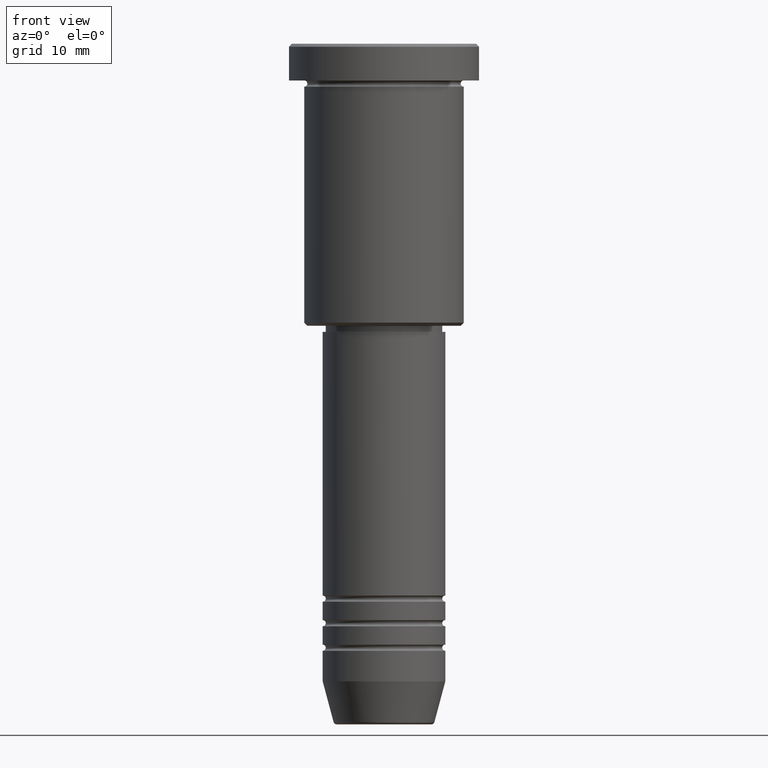
[diagram: clean part render]
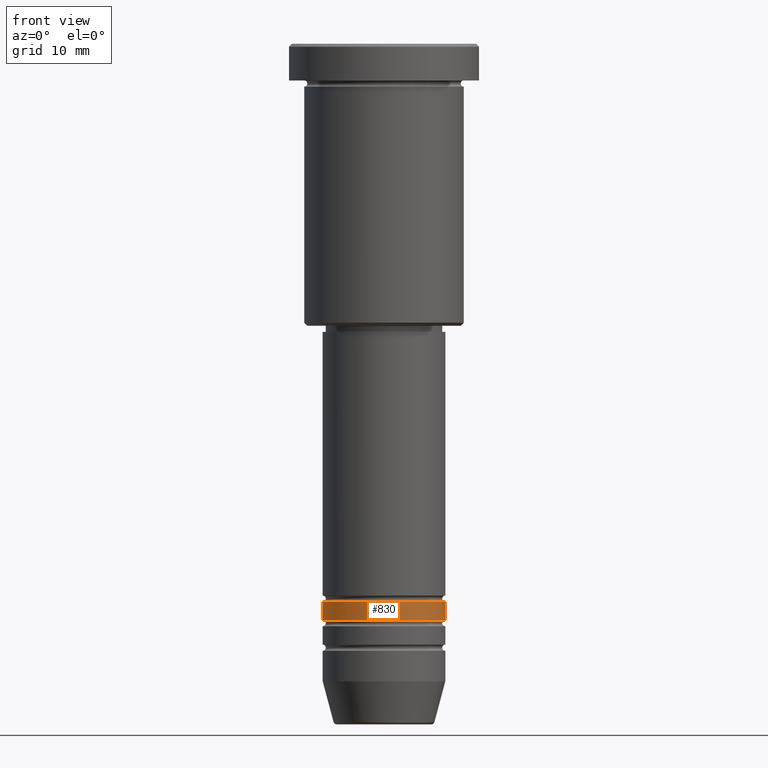
[diagram: same view with one face highlighted and labeled with its STEP entity id]
A machine part, front view. The second image highlights one B-rep face of the part: STEP entity #830.
In plain terms, the highlighted cylindrical surface (partial cylindrical patch) has radius 10 mm, axis along (-0, -0, 1).
Its self-contained STEP definition (entity closure, byte-faithful):
#16 = ORIENTED_EDGE ( 'NONE', *, *, #77, .T. ) ;
#53 = DIRECTION ( 'NONE',  ( -0.000000000000000000, -0.000000000000000000, 1.000000000000000000 ) ) ;
#76 = VERTEX_POINT ( 'NONE', #1079 ) ;
#77 = EDGE_CURVE ( 'NONE', #76, #377, #922, .T. ) ;
#93 = DIRECTION ( 'NONE',  ( 1.000000000000000000, 0.000000000000000000, 0.000000000000000000 ) ) ;
#110 = VECTOR ( 'NONE', #702, 1000.000000000000000 ) ;
#121 = ORIENTED_EDGE ( 'NONE', *, *, #200, .T. ) ;
#144 = VERTEX_POINT ( 'NONE', #664 ) ;
#200 = EDGE_CURVE ( 'NONE', #377, #787, #320, .T. ) ;
#201 = EDGE_LOOP ( 'NONE', ( #1101, #16, #121, #801 ) ) ;
#291 = AXIS2_PLACEMENT_3D ( 'NONE', #745, #834, #93 ) ;
#300 = CARTESIAN_POINT ( 'NONE',  ( 10.00000000000000178, 0.000000000000000000, 0.000000000000000000 ) ) ;
#320 = LINE ( 'NONE', #300, #642 ) ;
#335 = CARTESIAN_POINT ( 'NONE',  ( 10.00000000000000000, 0.000000000000000000, -90.99999999999990052 ) ) ;
#352 = DIRECTION ( 'NONE',  ( -0.000000000000000000, -0.000000000000000000, 1.000000000000000000 ) ) ;
#377 = VERTEX_POINT ( 'NONE', #1040 ) ;
#397 = CYLINDRICAL_SURFACE ( 'NONE', #291, 10.00000000000000178 ) ;
#467 = DIRECTION ( 'NONE',  ( 1.000000000000000000, 0.000000000000000000, 0.000000000000000000 ) ) ;
#499 = CARTESIAN_POINT ( 'NONE',  ( 0.000000000000000000, 0.000000000000000000, -90.99999999999990052 ) ) ;
#556 = CARTESIAN_POINT ( 'NONE',  ( 0.000000000000000000, 0.000000000000000000, -93.99999999999991473 ) ) ;
#589 = DIRECTION ( 'NONE',  ( 1.000000000000000000, 0.000000000000000000, 0.000000000000000000 ) ) ;
#642 = VECTOR ( 'NONE', #1142, 1000.000000000000000 ) ;
#664 = CARTESIAN_POINT ( 'NONE',  ( -10.00000000000000000, 1.224646799147353256E-15, -90.99999999999990052 ) ) ;
#669 = CARTESIAN_POINT ( 'NONE',  ( -10.00000000000000178, 1.224646799147353454E-15, 0.000000000000000000 ) ) ;
#702 = DIRECTION ( 'NONE',  ( -0.000000000000000000, -0.000000000000000000, 1.000000000000000000 ) ) ;
#745 = CARTESIAN_POINT ( 'NONE',  ( 0.000000000000000000, 0.000000000000000000, 0.000000000000000000 ) ) ;
#780 = LINE ( 'NONE', #669, #110 ) ;
#787 = VERTEX_POINT ( 'NONE', #335 ) ;
#801 = ORIENTED_EDGE ( 'NONE', *, *, #813, .F. ) ;
#813 = EDGE_CURVE ( 'NONE', #144, #787, #966, .T. ) ;
#830 = ADVANCED_FACE ( 'NONE', ( #962 ), #397, .T. ) ;
#834 = DIRECTION ( 'NONE',  ( -0.000000000000000000, -0.000000000000000000, 1.000000000000000000 ) ) ;
#908 = AXIS2_PLACEMENT_3D ( 'NONE', #556, #352, #467 ) ;
#922 = CIRCLE ( 'NONE', #908, 10.00000000000000178 ) ;
#962 = FACE_OUTER_BOUND ( 'NONE', #201, .T. ) ;
#966 = CIRCLE ( 'NONE', #1165, 10.00000000000000000 ) ;
#1040 = CARTESIAN_POINT ( 'NONE',  ( 10.00000000000000178, 0.000000000000000000, -93.99999999999991473 ) ) ;
#1057 = EDGE_CURVE ( 'NONE', #76, #144, #780, .T. ) ;
#1079 = CARTESIAN_POINT ( 'NONE',  ( -10.00000000000000178, 1.224646799147353454E-15, -93.99999999999991473 ) ) ;
#1101 = ORIENTED_EDGE ( 'NONE', *, *, #1057, .F. ) ;
#1142 = DIRECTION ( 'NONE',  ( -0.000000000000000000, -0.000000000000000000, 1.000000000000000000 ) ) ;
#1165 = AXIS2_PLACEMENT_3D ( 'NONE', #499, #53, #589 ) ;